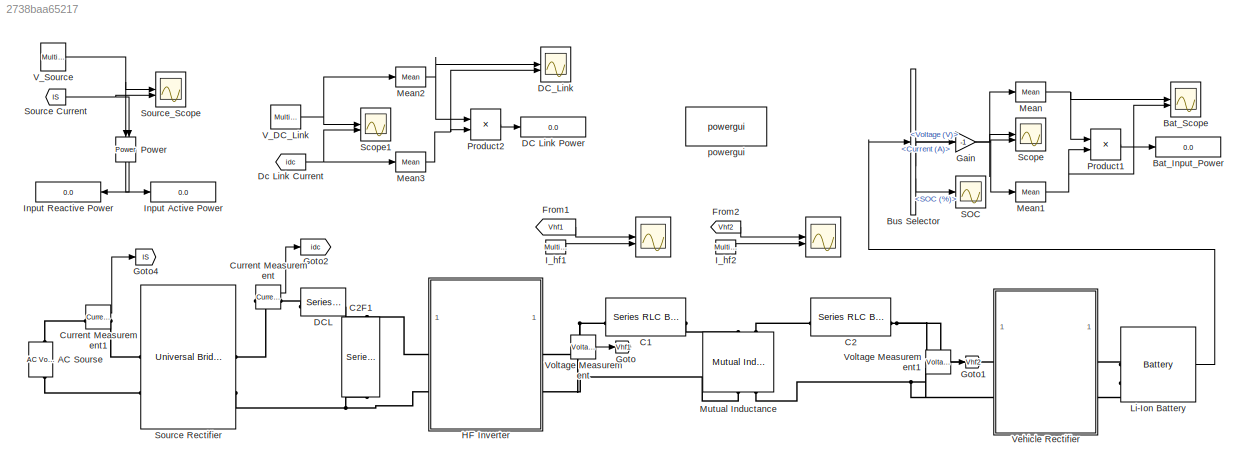
MODEL slx_2738baa65217
KIND model
CONFIG AbsTol = auto
CONFIG EnableMultiTasking = off
CONFIG FixedStep = auto
CONFIG MaxStep = 1e-3
CONFIG MinStep = auto
CONFIG RelTol = 1e-3
CONFIG SampleTimeConstraint = Unconstrained
CONFIG SolverName = ode23t
CONFIG StartTime = 0.0
CONFIG StopTime = 10
BLOCK [Scope]  
  Floating = off
  NumInputPorts = 2
  ScopeSpecificationString = Simulink.scopes.TimeScopeBlockCfg('CurrentConfiguration', extmgr.ConfigurationSet(extmgr.Configuration('Core','General UI',true,'FigureColor',[1 1 1]),extmgr.Configuration('Core','Source UI',true),extmgr.Configuration('Sources','WiredSimulink',true,'DataLoggingVariableName','ScopeData3'),extmgr.Configuration('Visuals','Time Domain',true,'TimeAxisLabels','All','SerializedDisplays',{struct('MinYLimR...<+2300ch>
BLOCK [Scope]    
  Floating = off
  NumInputPorts = 2
  ScopeSpecificationString = Simulink.scopes.TimeScopeBlockCfg('CurrentConfiguration', extmgr.ConfigurationSet(extmgr.Configuration('Core','General UI',true,'FigureColor',[1 1 1]),extmgr.Configuration('Core','Source UI',true),extmgr.Configuration('Sources','WiredSimulink',true,'DataLoggingVariableName','ScopeData4'),extmgr.Configuration('Visuals','Time Domain',true,'TimeAxisLabels','All','SerializedDisplays',{struct('MinYLimR...<+2297ch>
BLOCK [Reference] AC Sourse  REF=spsACVoltageSourceLib/AC Voltage Source
  LibrarySourceBlock = sps_lib/Sources/AC Voltage Source
  NameLocation = right
  SourceBlock = spsACVoltageSourceLib/AC Voltage Source
  SourceType = AC Voltage Source
BLOCK [Display] Bat_Input_Power
  Decimation = 1
BLOCK [Scope] Bat_Scope
  Floating = off
  NumInputPorts = 2
  ScopeSpecificationString = Simulink.scopes.TimeScopeBlockCfg('CurrentConfiguration', extmgr.ConfigurationSet(extmgr.Configuration('Core','General UI',true,'FigureColor',[1 1 1]),extmgr.Configuration('Core','Source UI',true),extmgr.Configuration('Sources','WiredSimulink',true,'DataLoggingVariableName','ScopeData2'),extmgr.Configuration('Visuals','Time Domain',true,'TimeAxisLabels','All','SerializedDisplays',{struct('MinYLimR...<+2272ch>
BLOCK [BusSelector] Bus Selector
  OutputSignals = Voltage (V),Current (A),SOC (%)
BLOCK [Reference] C1  REF=spsSeriesRLCBranchLib/Series RLC Branch
  LibrarySourceBlock = sps_lib/Passives/Series RLC Branch
  SourceBlock = spsSeriesRLCBranchLib/Series RLC Branch
  SourceType = Series RLC Branch
BLOCK [Reference] C2  REF=spsSeriesRLCBranchLib/Series RLC Branch
  LibrarySourceBlock = sps_lib/Passives/Series RLC Branch
  SourceBlock = spsSeriesRLCBranchLib/Series RLC Branch
  SourceType = Series RLC Branch
BLOCK [Reference] C2F1  REF=spsSeriesRLCBranchLib/Series RLC Branch
  LibrarySourceBlock = sps_lib/Passives/Series RLC Branch
  NameLocation = left
  SourceBlock = spsSeriesRLCBranchLib/Series RLC Branch
  SourceType = Series RLC Branch
BLOCK [Reference] Current Measurement  REF=spsCurrentMeasurementLib/Current Measurement
  LibrarySourceBlock = sps_lib/Sensors and Measurements/Current Measurement
  SourceBlock = spsCurrentMeasurementLib/Current Measurement
  SourceType = Current Measurement
  UserDataPersistent = on
BLOCK [Reference] Current Measurement1  REF=spsCurrentMeasurementLib/Current Measurement
  LibrarySourceBlock = sps_lib/Sensors and Measurements/Current Measurement
  SourceBlock = spsCurrentMeasurementLib/Current Measurement
  SourceType = Current Measurement
  UserDataPersistent = on
BLOCK [Display] DC Link Power
  Decimation = 1
BLOCK [Reference] DCL  REF=spsSeriesRLCBranchLib/Series RLC Branch
  LibrarySourceBlock = sps_lib/Passives/Series RLC Branch
  NameLocation = top
  SourceBlock = spsSeriesRLCBranchLib/Series RLC Branch
  SourceType = Series RLC Branch
BLOCK [Scope] DC_Link
  Floating = off
  NumInputPorts = 2
  ScopeSpecificationString = Simulink.scopes.TimeScopeBlockCfg('CurrentConfiguration', extmgr.ConfigurationSet(extmgr.Configuration('Core','General UI',true,'FigureColor',[1 1 1]),extmgr.Configuration('Core','Source UI',true),extmgr.Configuration('Sources','WiredSimulink',true,'DataLoggingVariableName','ScopeData1'),extmgr.Configuration('Visuals','Time Domain',true,'TimeAxisLabels','All','SerializedDisplays',{struct('MinYLimR...<+2252ch>
BLOCK [From] Dc Link Current
  GotoTag = idc
BLOCK [From] From1
  GotoTag = Vhf1
BLOCK [From] From2
  GotoTag = Vhf2
BLOCK [Gain] Gain
  Gain = -1
BLOCK [Goto] Goto
  GotoTag = Vhf1
BLOCK [Goto] Goto1
  GotoTag = Vhf2
BLOCK [Goto] Goto2
  GotoTag = idc
BLOCK [Goto] Goto4
  GotoTag = IS
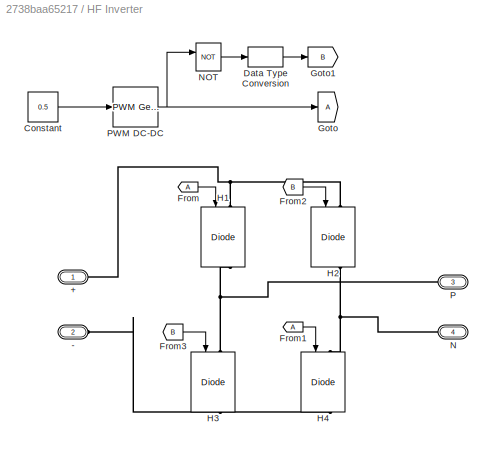
BLOCK [SubSystem] HF Inverter
BLOCK [PMIOPort] HF Inverter/+
  Side = Left
BLOCK [PMIOPort] HF Inverter/-
  Port = 2
  Side = Left
BLOCK [Constant] HF Inverter/Constant
  Value = 0.5
BLOCK [DataTypeConversion] HF Inverter/Data Type Conversion
  OutDataTypeStr = double
  RndMeth = Floor
  SaturateOnIntegerOverflow = off
BLOCK [From] HF Inverter/From
BLOCK [From] HF Inverter/From1
BLOCK [From] HF Inverter/From2
  GotoTag = B
BLOCK [From] HF Inverter/From3
  GotoTag = B
BLOCK [Goto] HF Inverter/Goto
BLOCK [Goto] HF Inverter/Goto1
  GotoTag = B
BLOCK [Reference] HF Inverter/H1  REF=spsIGBTDiodeLib/IGBT//Diode
  LibrarySourceBlock = sps_lib/Power Electronics/IGBT//Diode
  NameLocation = left
  SourceBlock = spsIGBTDiodeLib/IGBT//Diode
  SourceType = IGBT/Diode
BLOCK [Reference] HF Inverter/H2  REF=spsIGBTDiodeLib/IGBT//Diode
  LibrarySourceBlock = sps_lib/Power Electronics/IGBT//Diode
  NameLocation = left
  SourceBlock = spsIGBTDiodeLib/IGBT//Diode
  SourceType = IGBT/Diode
BLOCK [Reference] HF Inverter/H3  REF=spsIGBTDiodeLib/IGBT//Diode
  LibrarySourceBlock = sps_lib/Power Electronics/IGBT//Diode
  NameLocation = left
  SourceBlock = spsIGBTDiodeLib/IGBT//Diode
  SourceType = IGBT/Diode
BLOCK [Reference] HF Inverter/H4  REF=spsIGBTDiodeLib/IGBT//Diode
  LibrarySourceBlock = sps_lib/Power Electronics/IGBT//Diode
  NameLocation = left
  SourceBlock = spsIGBTDiodeLib/IGBT//Diode
  SourceType = IGBT/Diode
BLOCK [PMIOPort] HF Inverter/N
  NameLocation = top
  Port = 4
  Side = Right
BLOCK [Logic] HF Inverter/NOT 
  AllPortsSameDT = off
  IconShape = distinctive
  Operator = NOT
  OutDataTypeStr = boolean
BLOCK [PMIOPort] HF Inverter/P
  Port = 3
  Side = Right
BLOCK [Reference] HF Inverter/PWM DC-DC  REF=spsPWMGeneratorDCDCLib/PWM Generator
(DC-DC)
  LibrarySourceBlock = sps_lib/Power Electronics/Power Electronics Control/PWM Generator\n(DC-DC)
  SourceBlock = spsPWMGeneratorDCDCLib/PWM Generator\n(DC-DC)
  SourceType = PWM Generator (DC-DC)
BLOCK [Reference] I_hf1  REF=spsMultimeterLib/Multimeter
  LibrarySourceBlock = sps_lib/Sensors and Measurements/Multimeter
  SourceBlock = spsMultimeterLib/Multimeter
  SourceType = Multimeter
BLOCK [Reference] I_hf2  REF=spsMultimeterLib/Multimeter
  LibrarySourceBlock = sps_lib/Sensors and Measurements/Multimeter
  SourceBlock = spsMultimeterLib/Multimeter
  SourceType = Multimeter
BLOCK [Display] Input Active Power
  Decimation = 1
BLOCK [Display] Input Reactive Power
  Decimation = 1
BLOCK [Reference] Li-Ion Battery  REF=spsBatteryLib/Battery
  LibrarySourceBlock = electricdrivelib/Extra Sources/Battery
  SourceBlock = spsBatteryLib/Battery
  SourceType = Battery
BLOCK [Reference] Mean  REF=spsMeanLib/Mean
  LibrarySourceBlock = sps_lib/Sensors and Measurements/Mean
  SourceBlock = spsMeanLib/Mean
  SourceType = Mean
BLOCK [Reference] Mean1  REF=spsMeanLib/Mean
  LibrarySourceBlock = sps_lib/Sensors and Measurements/Mean
  SourceBlock = spsMeanLib/Mean
  SourceType = Mean
BLOCK [Reference] Mean2  REF=spsMeanLib/Mean
  LibrarySourceBlock = sps_lib/Sensors and Measurements/Mean
  SourceBlock = spsMeanLib/Mean
  SourceType = Mean
BLOCK [Reference] Mean3  REF=spsMeanLib/Mean
  LibrarySourceBlock = sps_lib/Sensors and Measurements/Mean
  SourceBlock = spsMeanLib/Mean
  SourceType = Mean
BLOCK [Reference] Mutual Inductance  REF=spsMutualInductanceLib/Mutual Inductance
  AttributesFormatString = \n
  LibrarySourceBlock = sps_lib/Passives/Mutual Inductance
  NameLocation = left
  SourceBlock = spsMutualInductanceLib/Mutual Inductance
  SourceType = Mutual Inductance
BLOCK [Reference] Power  REF=spsPowerLib/Power
  LibrarySourceBlock = sps_lib/Sensors and Measurements/Power
  NameLocation = left
  SourceBlock = spsPowerLib/Power
  SourceType = Power
BLOCK [Product] Product1
BLOCK [Product] Product2
BLOCK [Scope] SOC
  Floating = off
  NumInputPorts = 1
  ScopeSpecificationString = Simulink.scopes.TimeScopeBlockCfg('CurrentConfiguration', extmgr.ConfigurationSet(extmgr.Configuration('Core','General UI',true,'FigureColor',[1 1 1]),extmgr.Configuration('Core','Source UI',true),extmgr.Configuration('Sources','WiredSimulink',true,'DataLoggingVariableName','ScopeData1'),extmgr.Configuration('Visuals','Time Domain',true,'TimeAxisLabels','All','SerializedDisplays',{struct('MinYLimR...<+1621ch>
BLOCK [Scope] Scope
  Floating = off
  NumInputPorts = 2
  ScopeSpecificationString = Simulink.scopes.TimeScopeBlockCfg('CurrentConfiguration', extmgr.ConfigurationSet(extmgr.Configuration('Core','General UI',true),extmgr.Configuration('Core','Source UI',true),extmgr.Configuration('Sources','WiredSimulink',true),extmgr.Configuration('Visuals','Time Domain',true,'SerializedDisplays',{struct('MinYLimReal','430.85531','MaxYLimReal','431.62771','YLabelReal','','MinYLimMag','430.85531',...<+2032ch>
BLOCK [Scope] Scope1
  Floating = off
  NumInputPorts = 2
  ScopeSpecificationString = Simulink.scopes.TimeScopeBlockCfg('CurrentConfiguration', extmgr.ConfigurationSet(extmgr.Configuration('Core','General UI',true),extmgr.Configuration('Core','Source UI',true),extmgr.Configuration('Sources','WiredSimulink',true,'DataLoggingVariableName','ScopeData3'),extmgr.Configuration('Visuals','Time Domain',true,'SerializedDisplays',{struct('MinYLimReal','-40.62456','MaxYLimReal','365.62102','Y...<+2078ch>
BLOCK [From] Source Current
  GotoTag = IS
BLOCK [Reference] Source Rectifier  REF=spsUniversalBridgeLib/Universal Bridge
  LibrarySourceBlock = sps_lib/Power Electronics/Universal Bridge
  SourceBlock = spsUniversalBridgeLib/Universal Bridge
  SourceType = Universal Bridge
BLOCK [Scope] Source_Scope
  Floating = off
  NumInputPorts = 2
  ScopeSpecificationString = Simulink.scopes.TimeScopeBlockCfg('CurrentConfiguration', extmgr.ConfigurationSet(extmgr.Configuration('Core','General UI',true,'FigureColor',[1 1 1]),extmgr.Configuration('Core','Source UI',true),extmgr.Configuration('Sources','WiredSimulink',true,'DataLoggingVariableName','source','DataLogging',true,'DataLoggingSaveFormat','StructureWithTime'),extmgr.Configuration('Visuals','Time Domain',true,'T...<+2323ch>
BLOCK [Reference] V_DC_Link  REF=spsMultimeterLib/Multimeter
  LibrarySourceBlock = sps_lib/Sensors and Measurements/Multimeter
  SourceBlock = spsMultimeterLib/Multimeter
  SourceType = Multimeter
BLOCK [Reference] V_Source  REF=spsMultimeterLib/Multimeter
  LibrarySourceBlock = sps_lib/Sensors and Measurements/Multimeter
  SourceBlock = spsMultimeterLib/Multimeter
  SourceType = Multimeter
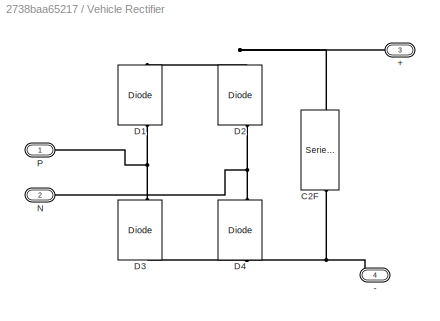
BLOCK [SubSystem] Vehicle Rectifier
BLOCK [PMIOPort] Vehicle Rectifier/+
  NameLocation = top
  Port = 3
  Side = Right
BLOCK [PMIOPort] Vehicle Rectifier/-
  NameLocation = top
  Port = 4
  Side = Right
BLOCK [Reference] Vehicle Rectifier/C2F  REF=spsSeriesRLCBranchLib/Series RLC Branch
  LibrarySourceBlock = sps_lib/Passives/Series RLC Branch
  NameLocation = left
  SourceBlock = spsSeriesRLCBranchLib/Series RLC Branch
  SourceType = Series RLC Branch
BLOCK [Reference] Vehicle Rectifier/D1  REF=spsDiodeLib/Diode
  LibrarySourceBlock = sps_lib/Power Electronics/Diode
  NameLocation = right
  SourceBlock = spsDiodeLib/Diode
  SourceType = Diode
BLOCK [Reference] Vehicle Rectifier/D2  REF=spsDiodeLib/Diode
  LibrarySourceBlock = sps_lib/Power Electronics/Diode
  NameLocation = right
  SourceBlock = spsDiodeLib/Diode
  SourceType = Diode
BLOCK [Reference] Vehicle Rectifier/D3  REF=spsDiodeLib/Diode
  LibrarySourceBlock = sps_lib/Power Electronics/Diode
  NameLocation = right
  SourceBlock = spsDiodeLib/Diode
  SourceType = Diode
BLOCK [Reference] Vehicle Rectifier/D4  REF=spsDiodeLib/Diode
  LibrarySourceBlock = sps_lib/Power Electronics/Diode
  NameLocation = right
  SourceBlock = spsDiodeLib/Diode
  SourceType = Diode
BLOCK [PMIOPort] Vehicle Rectifier/N
  Port = 2
  Side = Left
BLOCK [PMIOPort] Vehicle Rectifier/P
  Side = Left
BLOCK [Reference] Voltage Measurement  REF=spsVoltageMeasurementLib/Voltage Measurement
  LibrarySourceBlock = sps_lib/Sensors and Measurements/Voltage Measurement
  SourceBlock = spsVoltageMeasurementLib/Voltage Measurement
  SourceType = Voltage Measurement
  UserDataPersistent = on
BLOCK [Reference] Voltage Measurement1  REF=spsVoltageMeasurementLib/Voltage Measurement
  LibrarySourceBlock = sps_lib/Sensors and Measurements/Voltage Measurement
  SourceBlock = spsVoltageMeasurementLib/Voltage Measurement
  SourceType = Voltage Measurement
  UserDataPersistent = on
BLOCK [Reference] powergui  REF=sps_lib/powergui
  Priority = 1
  SourceBlock = sps_lib/powergui
  SourceType = PSB option menu block
NET Bus Selector:1 -> Mean:1, Scope:1
LINE Bus Selector:2 -> Gain:1
LINE Bus Selector:3 -> SOC:1
LINE Current Measurement1:1 -> Goto4:1
LINE Current Measurement:1 -> Goto2:1
NET Dc Link Current:1 -> Mean3:1, Scope1:2
LINE From1:1 ->  :1
LINE From2:1 ->    :1
NET Gain:1 -> Mean1:1, Scope:2
LINE HF Inverter/Constant:1 -> HF Inverter/PWM DC-DC:1
LINE HF Inverter/Data Type Conversion:1 -> HF Inverter/Goto1:1
LINE HF Inverter/From1:1 -> HF Inverter/H4:1
LINE HF Inverter/From2:1 -> HF Inverter/H2:1
LINE HF Inverter/From3:1 -> HF Inverter/H3:1
LINE HF Inverter/From:1 -> HF Inverter/H1:1
LINE HF Inverter/NOT :1 -> HF Inverter/Data Type Conversion:1
NET HF Inverter/PWM DC-DC:1 -> HF Inverter/Goto:1, HF Inverter/NOT :1
LINE I_hf1:1 ->  :2
LINE I_hf2:1 ->    :2
LINE Li-Ion Battery:1 -> Bus Selector:1
NET Mean1:1 -> Bat_Scope:2, Product1:2
NET Mean2:1 -> DC_Link:1, Product2:1
NET Mean3:1 -> DC_Link:2, Product2:2
NET Mean:1 -> Bat_Scope:1, Product1:1
LINE Power:1 -> Input Active Power:1
LINE Power:2 -> Input Reactive Power:1
LINE Product1:1 -> Bat_Input_Power:1
LINE Product2:1 -> DC Link Power:1
NET Source Current:1 -> Power:2, Source_Scope:2
NET V_DC_Link:1 -> Mean2:1, Scope1:1
NET V_Source:1 -> Power:1, Source_Scope:1
LINE Voltage Measurement1:1 -> Goto1:1
LINE Voltage Measurement:1 -> Goto:1
PLINE AC Sourse:LConn1 -- Source Rectifier:LConn2
PLINE AC Sourse:RConn1 -- Current Measurement1:LConn1
PNET net1: C1:LConn1 -- HF Inverter:RConn1 -- Voltage Measurement:LConn1
PLINE C1:RConn1 -- Mutual Inductance:LConn1
PLINE C2:LConn1 -- Mutual Inductance:LConn2
PNET net2: C2:RConn1 -- Vehicle Rectifier:LConn1 -- Voltage Measurement1:LConn1
PNET net3: C2F1:LConn1 -- DCL:LConn1 -- HF Inverter:LConn1
PNET net4: C2F1:RConn1 -- HF Inverter:LConn2 -- Source Rectifier:RConn2
PLINE Current Measurement1:RConn1 -- Source Rectifier:LConn1
PLINE Current Measurement:LConn1 -- Source Rectifier:RConn1
PLINE Current Measurement:RConn1 -- DCL:RConn1
PNET net5: HF Inverter/+:RConn1 -- HF Inverter/H1:LConn1 -- HF Inverter/H2:LConn1
PNET net6: HF Inverter/-:RConn1 -- HF Inverter/H3:RConn1 -- HF Inverter/H4:RConn1
PNET net7: HF Inverter/H1:RConn1 -- HF Inverter/H3:LConn1 -- HF Inverter/P:RConn1
PNET net8: HF Inverter/H2:RConn1 -- HF Inverter/H4:LConn1 -- HF Inverter/N:RConn1
PNET net9: HF Inverter:RConn2 -- Mutual Inductance:RConn1 -- Voltage Measurement:LConn2
PLINE Li-Ion Battery:LConn1 -- Vehicle Rectifier:RConn1
PLINE Li-Ion Battery:LConn2 -- Vehicle Rectifier:RConn2
PNET net10: Mutual Inductance:RConn2 -- Vehicle Rectifier:LConn2 -- Voltage Measurement1:LConn2
PNET net11: Vehicle Rectifier/+:RConn1 -- Vehicle Rectifier/C2F:LConn1 -- Vehicle Rectifier/D1:RConn1 -- Vehicle Rectifier/D2:RConn1
PNET net12: Vehicle Rectifier/-:RConn1 -- Vehicle Rectifier/C2F:RConn1 -- Vehicle Rectifier/D3:LConn1 -- Vehicle Rectifier/D4:LConn1
PNET net13: Vehicle Rectifier/D1:LConn1 -- Vehicle Rectifier/D3:RConn1 -- Vehicle Rectifier/P:RConn1
PNET net14: Vehicle Rectifier/D2:LConn1 -- Vehicle Rectifier/D4:RConn1 -- Vehicle Rectifier/N:RConn1
note: NET lines group one-source signal fan-out (src -> all destinations, sorted); 1:1 wires keep LINE; PNET lines group multi-terminal physical nets as a canonical sorted terminal list (undirected conserving connections); 2-terminal nets keep the pairwise PLINE form
